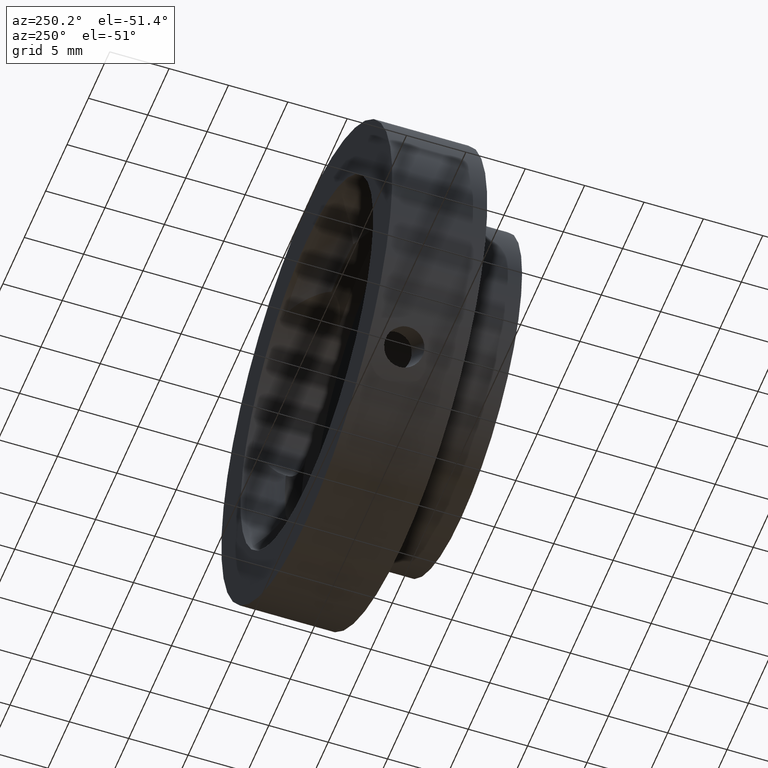
[diagram: clean part render]
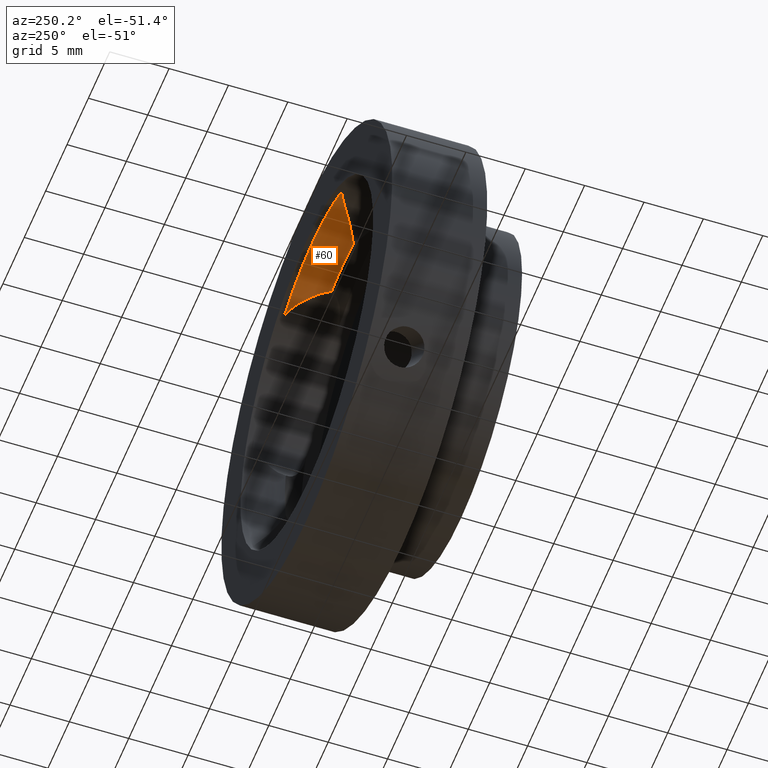
[diagram: same view with one face highlighted and labeled with its STEP entity id]
A machine part, auxiliary view. The second image highlights one B-rep face of the part: STEP entity #60.
In plain terms, the highlighted toroidal blend (fillet) surface has major radius 11.6376 mm and minor (blend) radius 4 mm.
Its self-contained STEP definition (entity closure, byte-faithful):
#8 = AXIS2_PLACEMENT_3D ( 'NONE', #210, #297, #21 ) ;
#15 = CARTESIAN_POINT ( 'NONE',  ( -2.868758540964464000, 1.180211099684868000, 13.52017169499467300 ) ) ;
#21 = DIRECTION ( 'NONE',  ( -1.000000000000000000, 0.0000000000000000000, -3.491481338843133400E-015 ) ) ;
#52 = ORIENTED_EDGE ( 'NONE', *, *, #307, .F. ) ;
#54 = CARTESIAN_POINT ( 'NONE',  ( 0.0000000000000000000, 4.536678175484936100, 0.0000000000000000000 ) ) ;
#60 = ADVANCED_FACE ( 'NONE', ( #843 ), #290, .F. ) ;
#71 = CARTESIAN_POINT ( 'NONE',  ( -3.381854016549984600, 1.492243382149810400, 13.83064545047062300 ) ) ;
#74 = CARTESIAN_POINT ( 'NONE',  ( -4.846655786138613900, 2.444241620916232500, 14.24906778481062400 ) ) ;
#75 = CARTESIAN_POINT ( 'NONE',  ( 3.919630033476336500, 1.832620452792584200, 14.07105243634744000 ) ) ;
#168 = B_SPLINE_CURVE_WITH_KNOTS ( 'NONE', 3,
 ( #371, #545, #746, #850, #842, #274, #1011, #732, #1112, #1199, #75, #1217, #286, #453, #171, #939 ),
 .UNSPECIFIED., .F., .F.,
 ( 4, 2, 2, 2, 2, 2, 2, 4 ),
 ( 0.02974911212890494300, 0.03043181742467573900, 0.03111452272044653400, 0.03179722801621733000, 0.03247993331198812500, 0.03384534390352971600, 0.03452804919930051900, 0.03521075449507131400 ),
 .UNSPECIFIED. ) ;
#170 = CARTESIAN_POINT ( 'NONE',  ( -5.412700853374187400, 2.813748851048251300, 14.25835776549404300 ) ) ;
#171 = CARTESIAN_POINT ( 'NONE',  ( 2.704266689609589900, 1.084322531590097500, 13.39689499330855900 ) ) ;
#201 = CARTESIAN_POINT ( 'NONE',  ( 1.898202538678397600E-015, 3.496721311475398800, 15.50000000000000000 ) ) ;
#205 = ORIENTED_EDGE ( 'NONE', *, *, #1106, .T. ) ;
#210 = CARTESIAN_POINT ( 'NONE',  ( 0.0000000000000000000, 0.9967213114754001100, 0.0000000000000000000 ) ) ;
#231 = EDGE_CURVE ( 'NONE', #1023, #1091, #168, .T. ) ;
#259 = CARTESIAN_POINT ( 'NONE',  ( -6.590073185079520900, 3.432943482454927400, 14.01021880579706100 ) ) ;
#274 = CARTESIAN_POINT ( 'NONE',  ( 5.605516290167515500, 2.936558714237189200, 14.24346657340510600 ) ) ;
#280 = ORIENTED_EDGE ( 'NONE', *, *, #1134, .T. ) ;
#286 = CARTESIAN_POINT ( 'NONE',  ( 3.209635250878668500, 1.385430873498021600, 13.73830664889750600 ) ) ;
#290 = TOROIDAL_SURFACE ( 'NONE', #791, 11.63755391998808100, 4.000000000000000000 ) ;
#297 = DIRECTION ( 'NONE',  ( 0.0000000000000000000, 1.000000000000000000, 0.0000000000000000000 ) ) ;
#307 = EDGE_CURVE ( 'NONE', #1032, #1091, #344, .T. ) ;
#344 = CIRCLE ( 'NONE', #8, 13.50000000000000200 ) ;
#349 = CARTESIAN_POINT ( 'NONE',  ( -7.001736115885067900, 3.496721311475398800, 13.82843777740315400 ) ) ;
#352 = CARTESIAN_POINT ( 'NONE',  ( -3.913994817353063200, 1.828975310511953100, 14.06908253521112200 ) ) ;
#364 = CARTESIAN_POINT ( 'NONE',  ( -6.899581099834890100, 3.496721311475390300, 13.88016180269154500 ) ) ;
#371 = CARTESIAN_POINT ( 'NONE',  ( 7.001736115884971100, 3.496721311475398800, 13.82843777740320400 ) ) ;
#451 = CARTESIAN_POINT ( 'NONE',  ( -7.001736115885067900, 3.496721311475398800, 13.82843777740315400 ) ) ;
#453 = CARTESIAN_POINT ( 'NONE',  ( 2.868624667381793400, 1.180122378412334500, 13.52013238326906300 ) ) ;
#456 = DIRECTION ( 'NONE',  ( -1.000000000000000000, 0.0000000000000000000, -3.491481338843133400E-015 ) ) ;
#487 = AXIS2_PLACEMENT_3D ( 'NONE', #1000, #827, #456 ) ;
#534 = CARTESIAN_POINT ( 'NONE',  ( -5.604751089734810100, 2.936082351651924300, 14.24354601419041600 ) ) ;
#545 = CARTESIAN_POINT ( 'NONE',  ( 6.800053129661761500, 3.496721311475390800, 13.93055567902952200 ) ) ;
#578 = CARTESIAN_POINT ( 'NONE',  ( -2.702823780702502600, 1.083520752990925400, 13.39562035408101100 ) ) ;
#630 = CARTESIAN_POINT ( 'NONE',  ( -5.033977164829024400, 2.568169107596818300, 14.26105648040220900 ) ) ;
#649 = DIRECTION ( 'NONE',  ( 0.0000000000000000000, 1.000000000000000000, 0.0000000000000000000 ) ) ;
#653 = CARTESIAN_POINT ( 'NONE',  ( -2.546616459341461500, 0.9967213114754001100, 13.25762967536094500 ) ) ;
#703 = ORIENTED_EDGE ( 'NONE', *, *, #1172, .T. ) ;
#726 = CARTESIAN_POINT ( 'NONE',  ( -6.795423100085654900, 3.482702181723705200, 13.92728520272104300 ) ) ;
#732 = CARTESIAN_POINT ( 'NONE',  ( 5.038555607198952100, 2.571175032170880800, 14.26120932474832900 ) ) ;
#745 = CARTESIAN_POINT ( 'NONE',  ( 7.001736115884971100, 3.496721311475398800, 13.82843777740320400 ) ) ;
#746 = CARTESIAN_POINT ( 'NONE',  ( 6.590287990156245000, 3.439781015952471300, 14.01439464805224800 ) ) ;
#756 = EDGE_LOOP ( 'NONE', ( #52, #205, #280, #703, #1219 ) ) ;
#791 = AXIS2_PLACEMENT_3D ( 'NONE', #54, #804, #1062 ) ;
#804 = DIRECTION ( 'NONE',  ( 0.0000000000000000000, 1.000000000000000000, 0.0000000000000000000 ) ) ;
#827 = DIRECTION ( 'NONE',  ( 0.0000000000000000000, 1.000000000000000000, 0.0000000000000000000 ) ) ;
#842 = CARTESIAN_POINT ( 'NONE',  ( 5.991872890390257400, 3.164748382257526400, 14.18446421572415300 ) ) ;
#843 = FACE_OUTER_BOUND ( 'NONE', #756, .T. ) ;
#850 = CARTESIAN_POINT ( 'NONE',  ( 6.189004834192692400, 3.273051393570931100, 14.13999295347885100 ) ) ;
#862 = CARTESIAN_POINT ( 'NONE',  ( -2.546616459341461500, 0.9967213114754001100, 13.25762967536094500 ) ) ;
#897 = CIRCLE ( 'NONE', #925, 15.50000000000000000 ) ;
#925 = AXIS2_PLACEMENT_3D ( 'NONE', #1143, #649, #1207 ) ;
#939 = CARTESIAN_POINT ( 'NONE',  ( 2.546616459341369200, 0.9967213114754001100, 13.25762967536096700 ) ) ;
#957 = CARTESIAN_POINT ( 'NONE',  ( -3.208198596321047500, 1.384557832305450800, 13.73743365685481000 ) ) ;
#985 = CIRCLE ( 'NONE', #487, 15.50000000000000000 ) ;
#1000 = CARTESIAN_POINT ( 'NONE',  ( 0.0000000000000000000, 3.496721311475398800, 0.0000000000000000000 ) ) ;
#1008 = B_SPLINE_CURVE_WITH_KNOTS ( 'NONE', 3,
 ( #862, #578, #15, #957, #71, #352, #1092, #74, #630, #170, #534, #1197, #1105, #1010, #259, #726, #364, #451 ),
 .UNSPECIFIED., .F., .F.,
 ( 4, 2, 2, 2, 2, 2, 2, 2, 4 ),
 ( 0.01843639225525061500, 0.01911242044255703800, 0.01978844862986346000, 0.02114050500447630900, 0.02181653319178273100, 0.02249256137908915400, 0.02316858956639558000, 0.02350660366004879100, 0.02384461775370200600 ),
 .UNSPECIFIED. ) ;
#1010 = CARTESIAN_POINT ( 'NONE',  ( -6.489008565772395300, 3.397747316493665800, 14.04612359629969600 ) ) ;
#1011 = CARTESIAN_POINT ( 'NONE',  ( 5.416066041005966400, 2.815893110031541600, 14.25814437215299400 ) ) ;
#1023 = VERTEX_POINT ( 'NONE', #745 ) ;
#1032 = VERTEX_POINT ( 'NONE', #653 ) ;
#1037 = VERTEX_POINT ( 'NONE', #201 ) ;
#1062 = DIRECTION ( 'NONE',  ( -1.000000000000000000, 0.0000000000000000000, -3.491481338843133400E-015 ) ) ;
#1091 = VERTEX_POINT ( 'NONE', #1146 ) ;
#1092 = CARTESIAN_POINT ( 'NONE',  ( -4.287132146555317800, 2.074599534079522500, 14.17359776413359500 ) ) ;
#1105 = CARTESIAN_POINT ( 'NONE',  ( -6.187858914650779400, 3.272480531539268400, 14.14029251314677000 ) ) ;
#1106 = EDGE_CURVE ( 'NONE', #1032, #1119, #1008, .T. ) ;
#1112 = CARTESIAN_POINT ( 'NONE',  ( 4.850646867616870100, 2.446878306503638800, 14.24949681428403600 ) ) ;
#1119 = VERTEX_POINT ( 'NONE', #349 ) ;
#1134 = EDGE_CURVE ( 'NONE', #1119, #1037, #985, .T. ) ;
#1143 = CARTESIAN_POINT ( 'NONE',  ( 0.0000000000000000000, 3.496721311475398800, 0.0000000000000000000 ) ) ;
#1146 = CARTESIAN_POINT ( 'NONE',  ( 2.546616459341369200, 0.9967213114754001100, 13.25762967536096700 ) ) ;
#1172 = EDGE_CURVE ( 'NONE', #1037, #1023, #897, .T. ) ;
#1197 = CARTESIAN_POINT ( 'NONE',  ( -5.991144206907892800, 3.164342333903260100, 14.18461276868672300 ) ) ;
#1199 = CARTESIAN_POINT ( 'NONE',  ( 4.285891765774679600, 2.073780035164024300, 14.17364710891938500 ) ) ;
#1207 = DIRECTION ( 'NONE',  ( -1.000000000000000000, 0.0000000000000000000, -3.491481338843133400E-015 ) ) ;
#1217 = CARTESIAN_POINT ( 'NONE',  ( 3.386112026407374300, 1.494898955604354200, 13.83282539570874000 ) ) ;
#1219 = ORIENTED_EDGE ( 'NONE', *, *, #231, .T. ) ;